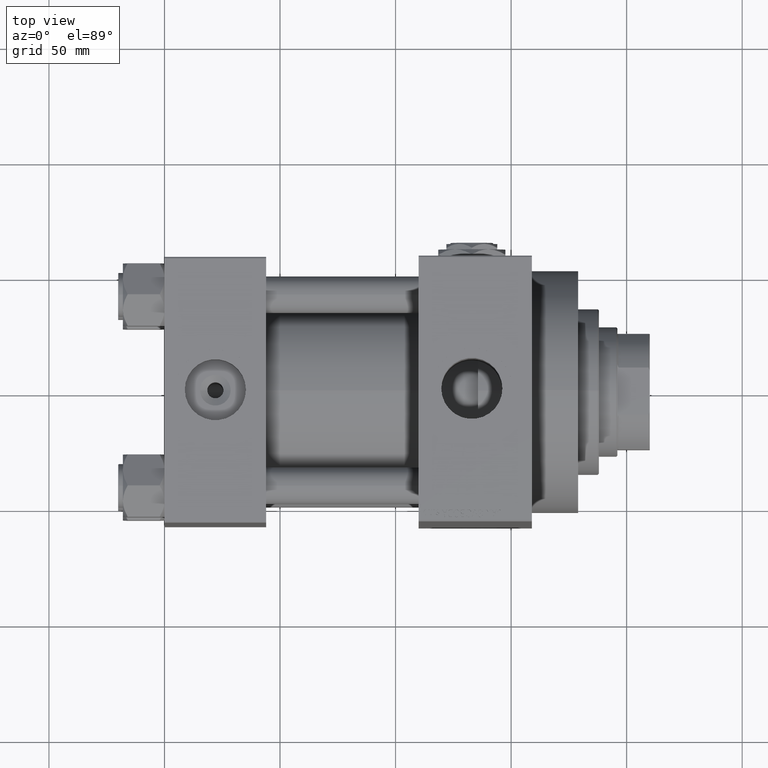
[diagram: clean part render]
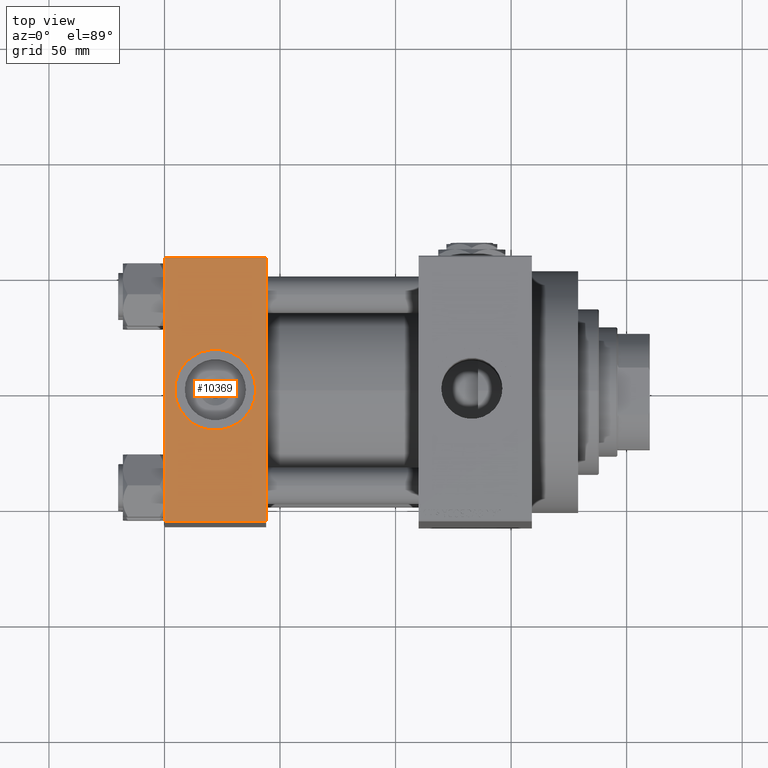
[diagram: same view with one face highlighted and labeled with its STEP entity id]
A machine part, top view. The second image highlights one B-rep face of the part: STEP entity #10369.
In plain terms, the highlighted planar face has unit normal (0, 0, -1).
Its self-contained STEP definition (entity closure, byte-faithful):
#259 = DIRECTION ( 'NONE',  ( 1.000000000000000000, 0.000000000000000000, 0.000000000000000000 ) ) ;
#2124 = CIRCLE ( 'NONE', #30081, 17.50000000000000000 ) ;
#5604 = VECTOR ( 'NONE', #28351, 1000.000000000000000 ) ;
#5715 = CARTESIAN_POINT ( 'NONE',  ( 4.499999999999997335, -9.999932433329782990E-15, 57.50000000000000711 ) ) ;
#6291 = EDGE_CURVE ( 'NONE', #34829, #42827, #26708, .T. ) ;
#7062 = EDGE_CURVE ( 'NONE', #42827, #27609, #10213, .T. ) ;
#7273 = DIRECTION ( 'NONE',  ( 0.000000000000000000, 0.000000000000000000, 1.000000000000000000 ) ) ;
#7518 = CARTESIAN_POINT ( 'NONE',  ( 22.00000000000000000, -1.214306433183765124E-14, 57.50000000000000711 ) ) ;
#8346 = LINE ( 'NONE', #35361, #5604 ) ;
#8592 = ORIENTED_EDGE ( 'NONE', *, *, #25444, .T. ) ;
#8886 = CARTESIAN_POINT ( 'NONE',  ( 44.00000000000000000, 57.00000000000001421, 57.50000000000001421 ) ) ;
#10213 = LINE ( 'NONE', #44945, #37764 ) ;
#10369 = ADVANCED_FACE ( 'NONE', ( #29918, #25920 ), #23152, .F. ) ;
#11295 = AXIS2_PLACEMENT_3D ( 'NONE', #31082, #27331, #46787 ) ;
#11315 = CARTESIAN_POINT ( 'NONE',  ( 39.50000000000000000, -1.214306433183765124E-14, 57.50000000000000711 ) ) ;
#11361 = CARTESIAN_POINT ( 'NONE',  ( 0.000000000000000000, -56.99999999999997158, 57.49999999999999289 ) ) ;
#11387 = DIRECTION ( 'NONE',  ( 0.000000000000000000, 1.000000000000000000, 1.810146235801885567E-16 ) ) ;
#11680 = CARTESIAN_POINT ( 'NONE',  ( 0.000000000000000000, 57.50000000000000000, 57.50000000000001421 ) ) ;
#11978 = DIRECTION ( 'NONE',  ( -1.000000000000000000, 0.000000000000000000, 0.000000000000000000 ) ) ;
#13724 = CARTESIAN_POINT ( 'NONE',  ( 44.00000000000000000, -56.99999999999997158, 57.49999999999999289 ) ) ;
#14754 = EDGE_LOOP ( 'NONE', ( #48613, #42656 ) ) ;
#15649 = DIRECTION ( 'NONE',  ( 0.000000000000000000, 1.810146235801885567E-16, -1.000000000000000000 ) ) ;
#17064 = EDGE_CURVE ( 'NONE', #25749, #38121, #2124, .T. ) ;
#17469 = VECTOR ( 'NONE', #11978, 1000.000000000000000 ) ;
#18659 = CARTESIAN_POINT ( 'NONE',  ( 44.00000000000000000, 57.50000000000000000, 57.50000000000001421 ) ) ;
#18997 = CARTESIAN_POINT ( 'NONE',  ( 0.000000000000000000, 57.00000000000001421, 57.50000000000001421 ) ) ;
#20986 = VECTOR ( 'NONE', #42904, 1000.000000000000000 ) ;
#23152 = PLANE ( 'NONE',  #29001 ) ;
#25444 = EDGE_CURVE ( 'NONE', #31017, #34829, #42712, .T. ) ;
#25749 = VERTEX_POINT ( 'NONE', #5715 ) ;
#25920 = FACE_OUTER_BOUND ( 'NONE', #27742, .T. ) ;
#26708 = LINE ( 'NONE', #11680, #20986 ) ;
#27331 = DIRECTION ( 'NONE',  ( 0.000000000000000000, 0.000000000000000000, 1.000000000000000000 ) ) ;
#27609 = VERTEX_POINT ( 'NONE', #13724 ) ;
#27742 = EDGE_LOOP ( 'NONE', ( #31789, #45652, #34632, #8592 ) ) ;
#28351 = DIRECTION ( 'NONE',  ( 0.000000000000000000, -1.000000000000000000, -1.810146235801885567E-16 ) ) ;
#29001 = AXIS2_PLACEMENT_3D ( 'NONE', #18659, #15649, #11387 ) ;
#29918 = FACE_BOUND ( 'NONE', #14754, .T. ) ;
#30081 = AXIS2_PLACEMENT_3D ( 'NONE', #7518, #7273, #259 ) ;
#31017 = VERTEX_POINT ( 'NONE', #8886 ) ;
#31082 = CARTESIAN_POINT ( 'NONE',  ( 22.00000000000000000, -1.214306433183765124E-14, 57.50000000000000711 ) ) ;
#31789 = ORIENTED_EDGE ( 'NONE', *, *, #6291, .T. ) ;
#32216 = EDGE_CURVE ( 'NONE', #31017, #27609, #8346, .T. ) ;
#34438 = EDGE_CURVE ( 'NONE', #38121, #25749, #45621, .T. ) ;
#34632 = ORIENTED_EDGE ( 'NONE', *, *, #32216, .F. ) ;
#34829 = VERTEX_POINT ( 'NONE', #41198 ) ;
#35361 = CARTESIAN_POINT ( 'NONE',  ( 44.00000000000000000, 57.50000000000000000, 57.50000000000001421 ) ) ;
#37764 = VECTOR ( 'NONE', #41193, 1000.000000000000000 ) ;
#38121 = VERTEX_POINT ( 'NONE', #11315 ) ;
#41193 = DIRECTION ( 'NONE',  ( 1.000000000000000000, 0.000000000000000000, 0.000000000000000000 ) ) ;
#41198 = CARTESIAN_POINT ( 'NONE',  ( 0.000000000000000000, 57.00000000000001421, 57.50000000000001421 ) ) ;
#42656 = ORIENTED_EDGE ( 'NONE', *, *, #17064, .F. ) ;
#42712 = LINE ( 'NONE', #18997, #17469 ) ;
#42827 = VERTEX_POINT ( 'NONE', #11361 ) ;
#42904 = DIRECTION ( 'NONE',  ( 0.000000000000000000, -1.000000000000000000, -1.810146235801885567E-16 ) ) ;
#44945 = CARTESIAN_POINT ( 'NONE',  ( 44.00000000000000000, -56.99999999999997158, 57.49999999999999289 ) ) ;
#45621 = CIRCLE ( 'NONE', #11295, 17.50000000000000000 ) ;
#45652 = ORIENTED_EDGE ( 'NONE', *, *, #7062, .T. ) ;
#46787 = DIRECTION ( 'NONE',  ( 1.000000000000000000, 0.000000000000000000, 0.000000000000000000 ) ) ;
#48613 = ORIENTED_EDGE ( 'NONE', *, *, #34438, .F. ) ;